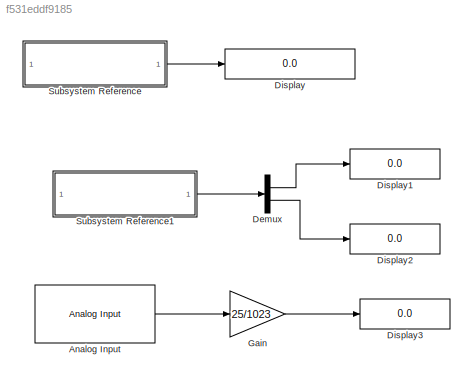
MODEL slx_f531eddf9185
KIND model
CONFIG AbsTol = auto
CONFIG EnableMultiTasking = on
CONFIG FixedStep = auto
CONFIG MaxStep = auto
CONFIG MinStep = auto
CONFIG RelTol = 1e-3
CONFIG SampleTimeConstraint = Unconstrained
CONFIG SolverName = FixedStepDiscrete
CONFIG StartTime = 0.0
CONFIG StopTime = inf
BLOCK [Reference] Analog Input  REF=arduinolib/Analog Input
  SourceBlock = arduinolib/Analog Input
  SourceType = Arduino Analog Input
BLOCK [Demux] Demux
  Commented = on
  Outputs = 2
BLOCK [Display] Display
  Commented = on
  Decimation = 1
BLOCK [Display] Display1
  Commented = on
  Decimation = 1
BLOCK [Display] Display2
  Commented = on
  Decimation = 1
BLOCK [Display] Display3
  Decimation = 1
BLOCK [Gain] Gain
  Gain = 25/1023
BLOCK [SubSystem] Subsystem Reference
  Commented = on
  ReferencedSubsystem = Laser
BLOCK [SubSystem] Subsystem Reference1
  Commented = on
  ReferencedSubsystem = Ultrasonidos
LINE Analog Input:1 -> Gain:1
LINE Demux:1 -> Display1:1
LINE Demux:2 -> Display2:1
LINE Gain:1 -> Display3:1
LINE Subsystem Reference1:1 -> Demux:1
LINE Subsystem Reference:1 -> Display:1
